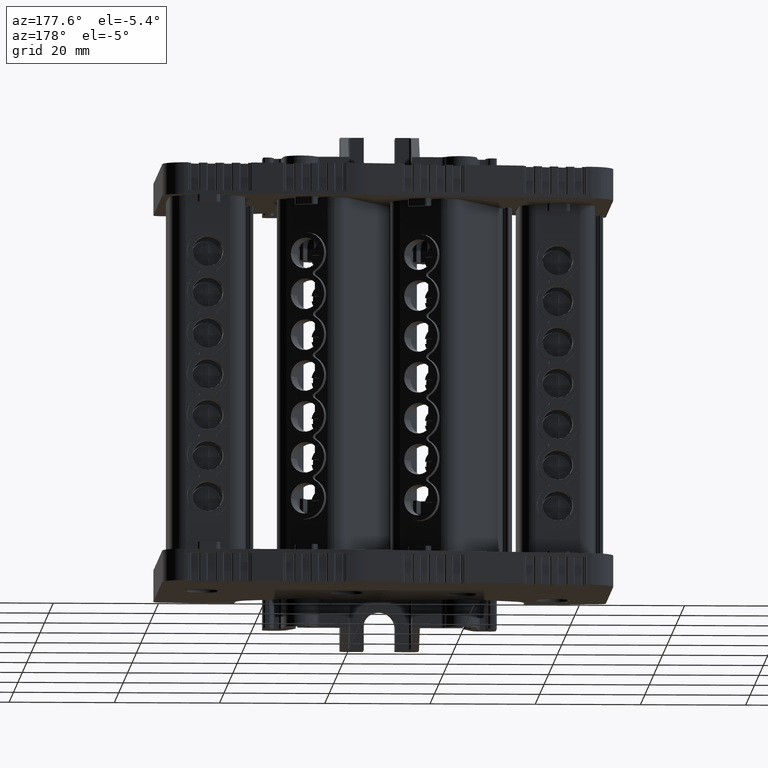
[diagram: clean part render]
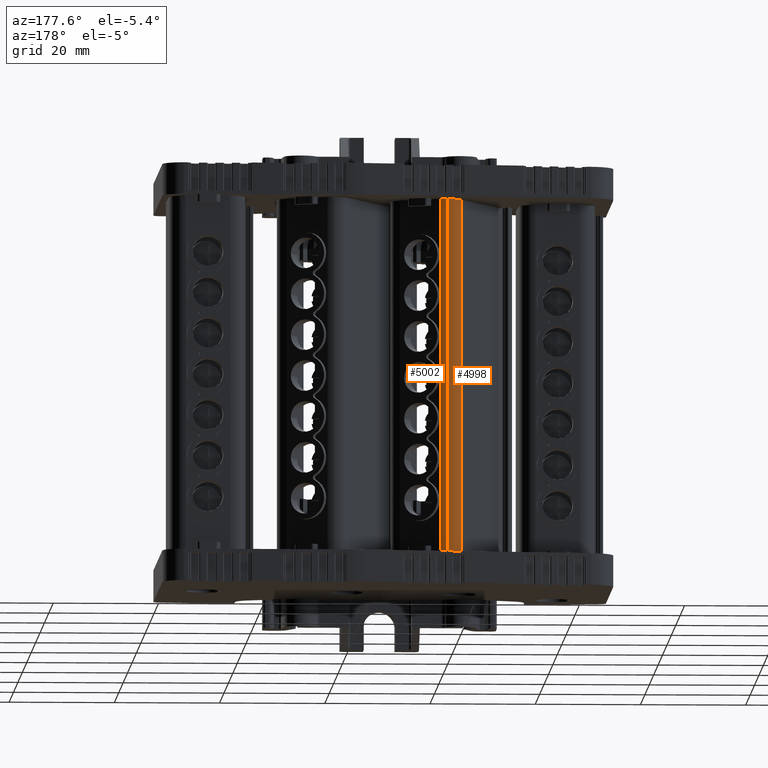
[diagram: same view with one multi-face feature highlighted, each face labeled with its STEP entity id]
A machine part, auxiliary view. The highlighted faces form ONE feature: a constant-radius fillet chain: 2 tangent blend faces with common blend radius 2.9989 mm. The faces share edges in the B-rep.
Their STEP definitions:
[1] entity #5002 (Cylinder):
#1643 = EDGE_CURVE ( 'NONE', #40558, #40639, #29847, .T. ) ;
#5002 = ADVANCED_FACE ( 'NONE', ( #73420 ), #73435, .T. ) ;
#12789 = EDGE_LOOP ( 'NONE', ( #22909, #22877, #22899, #22903 ) ) ;
#17159 = EDGE_CURVE ( 'NONE', #40558, #78453, #20170, .T. ) ;
#17440 = EDGE_CURVE ( 'NONE', #90932, #78453, #39799, .T. ) ;
#18828 = EDGE_CURVE ( 'NONE', #40639, #90932, #47955, .T. ) ;
#20056 = AXIS2_PLACEMENT_3D ( 'NONE', #34297, #34321, #34250 ) ;
#20170 = CIRCLE ( 'NONE', #20056, 2.998863636113985500 ) ;
#22877 = ORIENTED_EDGE ( 'NONE', *, *, #17159, .T. ) ;
#22899 = ORIENTED_EDGE ( 'NONE', *, *, #17440, .F. ) ;
#22903 = ORIENTED_EDGE ( 'NONE', *, *, #18828, .F. ) ;
#22909 = ORIENTED_EDGE ( 'NONE', *, *, #1643, .F. ) ;
#27210 = VECTOR ( 'NONE', #29910, 1000.000000000000000 ) ;
#29847 = LINE ( 'NONE', #29909, #27210 ) ;
#29909 = CARTESIAN_POINT ( 'NONE',  ( 381.8388949007084000, -76.23139732839784700, 40.78957769736745600 ) ) ;
#29910 = DIRECTION ( 'NONE',  ( -2.670878784693751500E-014, -7.311159212061145000E-014, -1.000000000000000000 ) ) ;
#34250 = DIRECTION ( 'NONE',  ( 0.0000000000000000000, 1.000000000000000000, -7.404291487316947300E-014 ) ) ;
#34297 = CARTESIAN_POINT ( 'NONE',  ( 381.8388949007098700, -79.23026096450777800, 96.12882012113773600 ) ) ;
#34321 = DIRECTION ( 'NONE',  ( -2.670878784693751500E-014, -7.311159212061145000E-014, -1.000000000000000000 ) ) ;
#37364 = VECTOR ( 'NONE', #39697, 1000.000000000000000 ) ;
#39693 = CARTESIAN_POINT ( 'NONE',  ( 383.1062694378011300, -76.51236749883999300, 28.89408527322716900 ) ) ;
#39697 = DIRECTION ( 'NONE',  ( 3.277371941038647800E-014, 7.028346808638827000E-014, 1.000000000000000000 ) ) ;
#39799 = LINE ( 'NONE', #39693, #37364 ) ;
#40558 = VERTEX_POINT ( 'NONE', #63886 ) ;
#40639 = VERTEX_POINT ( 'NONE', #61783 ) ;
#47955 = CIRCLE ( 'NONE', #47960, 2.998863636113985500 ) ;
#47960 = AXIS2_PLACEMENT_3D ( 'NONE', #49666, #49688, #49659 ) ;
#49659 = DIRECTION ( 'NONE',  ( 0.0000000000000000000, 1.000000000000000000, -7.288599432827620600E-014 ) ) ;
#49666 = CARTESIAN_POINT ( 'NONE',  ( 381.8388949007080600, -79.23026096451272300, 28.59460800001232900 ) ) ;
#49688 = DIRECTION ( 'NONE',  ( -2.670878784693751500E-014, -7.311159212061145000E-014, -1.000000000000000000 ) ) ;
#61783 = CARTESIAN_POINT ( 'NONE',  ( 381.8388949007089600, -76.23139732839872800, 28.59460800001210900 ) ) ;
#63886 = CARTESIAN_POINT ( 'NONE',  ( 381.8388949007089600, -76.23139732839379700, 96.12882012113752200 ) ) ;
#64325 = AXIS2_PLACEMENT_3D ( 'NONE', #73419, #73422, #73423 ) ;
#69534 = CARTESIAN_POINT ( 'NONE',  ( 383.1062694378031200, -76.51236749883516100, 96.12882012113750800 ) ) ;
#73419 = CARTESIAN_POINT ( 'NONE',  ( 381.8388949007084000, -79.23026096451182800, 40.78957769736767600 ) ) ;
#73420 = FACE_OUTER_BOUND ( 'NONE', #12789, .T. ) ;
#73422 = DIRECTION ( 'NONE',  ( -2.670878784693751500E-014, -7.311159212061145000E-014, -1.000000000000000000 ) ) ;
#73423 = DIRECTION ( 'NONE',  ( 0.0000000000000000000, 1.000000000000000000, -7.404291487316947300E-014 ) ) ;
#73435 = CYLINDRICAL_SURFACE ( 'NONE', #64325, 2.998863636113985500 ) ;
#73665 = CARTESIAN_POINT ( 'NONE',  ( 383.1062694378011300, -76.51236749884002100, 28.59460800001209400 ) ) ;
#78453 = VERTEX_POINT ( 'NONE', #69534 ) ;
#90932 = VERTEX_POINT ( 'NONE', #73665 ) ;
[2] entity #4998 (Cylinder):
#1643 = EDGE_CURVE ( 'NONE', #40558, #40639, #29847, .T. ) ;
#1690 = EDGE_CURVE ( 'NONE', #40635, #40639, #27320, .T. ) ;
#1697 = EDGE_CURVE ( 'NONE', #40666, #40558, #27276, .T. ) ;
#1703 = EDGE_CURVE ( 'NONE', #40635, #40666, #27982, .T. ) ;
#4998 = ADVANCED_FACE ( 'NONE', ( #73413 ), #73388, .T. ) ;
#27210 = VECTOR ( 'NONE', #29910, 1000.000000000000000 ) ;
#27260 = VECTOR ( 'NONE', #28045, 1000.000000000000000 ) ;
#27267 = AXIS2_PLACEMENT_3D ( 'NONE', #27911, #27973, #27901 ) ;
#27276 = CIRCLE ( 'NONE', #27294, 2.998863636113985500 ) ;
#27294 = AXIS2_PLACEMENT_3D ( 'NONE', #27928, #27934, #27942 ) ;
#27320 = CIRCLE ( 'NONE', #27267, 2.998863636113985500 ) ;
#27901 = DIRECTION ( 'NONE',  ( 0.0000000000000000000, 1.000000000000000000, -7.288599432827620600E-014 ) ) ;
#27911 = CARTESIAN_POINT ( 'NONE',  ( 381.8388949007080600, -79.23026096451272300, 28.59460800001232900 ) ) ;
#27928 = CARTESIAN_POINT ( 'NONE',  ( 381.8388949007098700, -79.23026096450777800, 96.12882012113773600 ) ) ;
#27934 = DIRECTION ( 'NONE',  ( -2.670878784693751500E-014, -7.311159212061145000E-014, -1.000000000000000000 ) ) ;
#27942 = DIRECTION ( 'NONE',  ( 0.0000000000000000000, 1.000000000000000000, -7.404291487316947300E-014 ) ) ;
#27973 = DIRECTION ( 'NONE',  ( -2.670878784693751500E-014, -7.311159212061145000E-014, -1.000000000000000000 ) ) ;
#27982 = LINE ( 'NONE', #27989, #27260 ) ;
#27989 = CARTESIAN_POINT ( 'NONE',  ( 379.1435341189094300, -77.91564567327758100, 40.78957769736765500 ) ) ;
#28045 = DIRECTION ( 'NONE',  ( 2.670878784693751500E-014, 7.311159212061145000E-014, 1.000000000000000000 ) ) ;
#29847 = LINE ( 'NONE', #29909, #27210 ) ;
#29909 = CARTESIAN_POINT ( 'NONE',  ( 381.8388949007084000, -76.23139732839784700, 40.78957769736745600 ) ) ;
#29910 = DIRECTION ( 'NONE',  ( -2.670878784693751500E-014, -7.311159212061145000E-014, -1.000000000000000000 ) ) ;
#40558 = VERTEX_POINT ( 'NONE', #63886 ) ;
#40635 = VERTEX_POINT ( 'NONE', #61792 ) ;
#40639 = VERTEX_POINT ( 'NONE', #61783 ) ;
#40666 = VERTEX_POINT ( 'NONE', #61742 ) ;
#41921 = ORIENTED_EDGE ( 'NONE', *, *, #1703, .T. ) ;
#41939 = ORIENTED_EDGE ( 'NONE', *, *, #1690, .F. ) ;
#41996 = ORIENTED_EDGE ( 'NONE', *, *, #1643, .T. ) ;
#42006 = ORIENTED_EDGE ( 'NONE', *, *, #1697, .T. ) ;
#61742 = CARTESIAN_POINT ( 'NONE',  ( 379.1435341189115300, -77.91564567327202400, 96.12882012113773600 ) ) ;
#61783 = CARTESIAN_POINT ( 'NONE',  ( 381.8388949007089600, -76.23139732839872800, 28.59460800001210900 ) ) ;
#61792 = CARTESIAN_POINT ( 'NONE',  ( 379.1435341189098300, -77.91564567327697000, 28.59460800001219700 ) ) ;
#63886 = CARTESIAN_POINT ( 'NONE',  ( 381.8388949007089600, -76.23139732839379700, 96.12882012113752200 ) ) ;
#63929 = AXIS2_PLACEMENT_3D ( 'NONE', #73403, #73434, #73389 ) ;
#73388 = CYLINDRICAL_SURFACE ( 'NONE', #63929, 2.998863636113985500 ) ;
#73389 = DIRECTION ( 'NONE',  ( 0.0000000000000000000, 1.000000000000000000, -7.404291487316947300E-014 ) ) ;
#73403 = CARTESIAN_POINT ( 'NONE',  ( 381.8388949007084000, -79.23026096451182800, 40.78957769736767600 ) ) ;
#73413 = FACE_OUTER_BOUND ( 'NONE', #83724, .T. ) ;
#73434 = DIRECTION ( 'NONE',  ( -2.670878784693751500E-014, -7.311159212061145000E-014, -1.000000000000000000 ) ) ;
#83724 = EDGE_LOOP ( 'NONE', ( #42006, #41996, #41939, #41921 ) ) ;